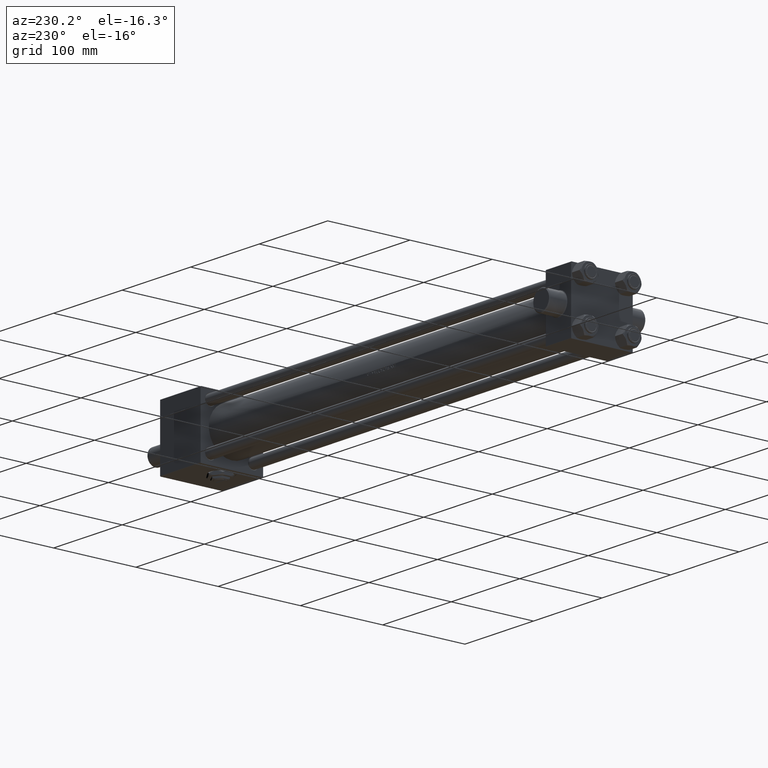
[diagram: clean part render]
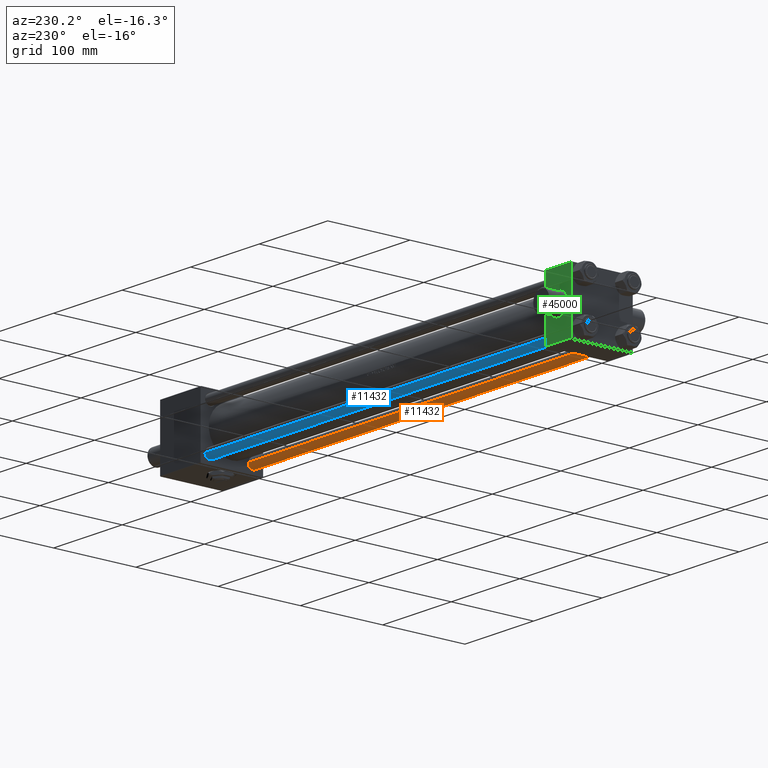
[diagram: same view with three faces highlighted in distinct colors, each labeled with its STEP entity id]
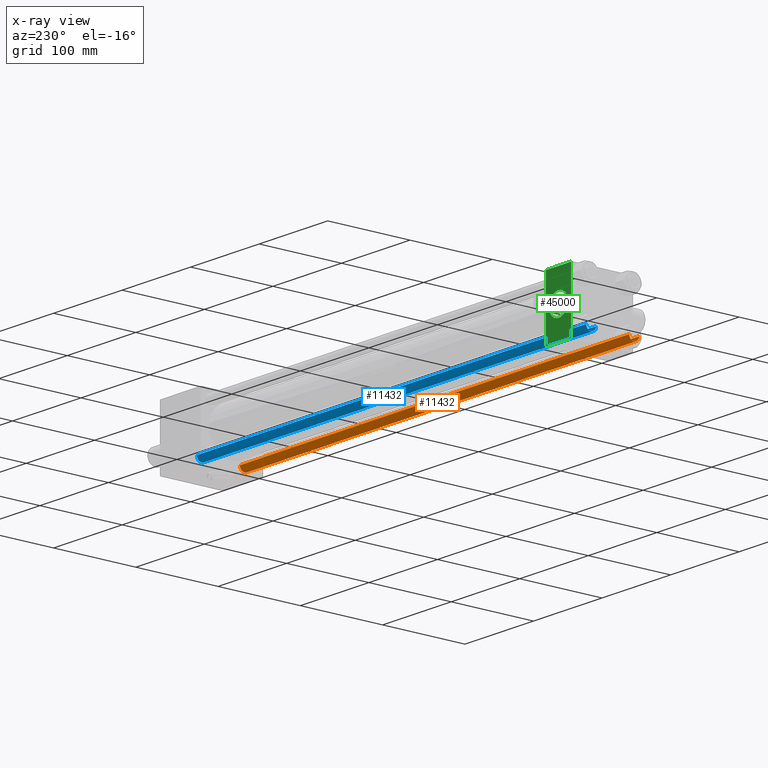
[diagram: x-ray of the same camera — body ghosted, the three highlighted faces saturated]
A machine part, auxiliary view with three faces highlighted in distinct colors.
The next image is the same camera in x-ray (body ghosted, the three faces saturated) — at least one of them is partly hidden behind the body in this view.
Their STEP definitions:

[orange] entity #11432 — the highlighted cylindrical surface (edge-blend (fillet) strip) has radius 6 mm, axis along (-1, 0, 0).
#1288 = DIRECTION ( 'NONE',  ( 1.000000000000000000, 0.000000000000000000, 0.000000000000000000 ) ) ;
#2099 = EDGE_LOOP ( 'NONE', ( #42581, #36193, #37785, #2671 ) ) ;
#2671 = ORIENTED_EDGE ( 'NONE', *, *, #28046, .T. ) ;
#4031 = CARTESIAN_POINT ( 'NONE',  ( 0.000000000000000000, 0.000000000000000000, 0.5000000000000559552 ) ) ;
#4516 = DIRECTION ( 'NONE',  ( -0.000000000000000000, -0.000000000000000000, 1.000000000000000000 ) ) ;
#4569 = DIRECTION ( 'NONE',  ( -0.000000000000000000, -0.000000000000000000, -1.000000000000000000 ) ) ;
#4586 = AXIS2_PLACEMENT_3D ( 'NONE', #4031, #4516, #1288 ) ;
#6389 = VERTEX_POINT ( 'NONE', #21955 ) ;
#7264 = LINE ( 'NONE', #33995, #38948 ) ;
#9618 = AXIS2_PLACEMENT_3D ( 'NONE', #43737, #10044, #36284 ) ;
#9925 = CARTESIAN_POINT ( 'NONE',  ( -6.000000000000000888, 0.000000000000000000, 0.5000000000000559552 ) ) ;
#10044 = DIRECTION ( 'NONE',  ( 0.000000000000000000, 0.000000000000000000, -1.000000000000000000 ) ) ;
#11358 = CARTESIAN_POINT ( 'NONE',  ( 0.000000000000000000, 0.000000000000000000, 569.0000000000000000 ) ) ;
#11432 = ADVANCED_FACE ( 'NONE', ( #23499 ), #31154, .T. ) ;
#11701 = DIRECTION ( 'NONE',  ( -0.000000000000000000, -0.000000000000000000, -1.000000000000000000 ) ) ;
#21955 = CARTESIAN_POINT ( 'NONE',  ( -6.000000000000000888, 0.000000000000000000, 568.5000000000001137 ) ) ;
#22261 = VECTOR ( 'NONE', #4569, 1000.000000000000000 ) ;
#23499 = FACE_OUTER_BOUND ( 'NONE', #2099, .T. ) ;
#24649 = CIRCLE ( 'NONE', #9618, 6.000000000000000888 ) ;
#26466 = DIRECTION ( 'NONE',  ( -0.000000000000000000, -0.000000000000000000, -1.000000000000000000 ) ) ;
#26877 = CARTESIAN_POINT ( 'NONE',  ( 6.000000000000000888, 7.347880794884120722E-16, 569.0000000000000000 ) ) ;
#28046 = EDGE_CURVE ( 'NONE', #32901, #30251, #40163, .T. ) ;
#30251 = VERTEX_POINT ( 'NONE', #48231 ) ;
#31154 = CYLINDRICAL_SURFACE ( 'NONE', #38606, 6.000000000000000888 ) ;
#32901 = VERTEX_POINT ( 'NONE', #9925 ) ;
#33995 = CARTESIAN_POINT ( 'NONE',  ( -6.000000000000000888, 0.000000000000000000, 569.0000000000000000 ) ) ;
#36193 = ORIENTED_EDGE ( 'NONE', *, *, #41231, .T. ) ;
#36284 = DIRECTION ( 'NONE',  ( 1.000000000000000000, 0.000000000000000000, 0.000000000000000000 ) ) ;
#36463 = EDGE_CURVE ( 'NONE', #37495, #30251, #42220, .T. ) ;
#37495 = VERTEX_POINT ( 'NONE', #43402 ) ;
#37785 = ORIENTED_EDGE ( 'NONE', *, *, #43302, .T. ) ;
#38606 = AXIS2_PLACEMENT_3D ( 'NONE', #11358, #26466, #41562 ) ;
#38948 = VECTOR ( 'NONE', #11701, 1000.000000000000000 ) ;
#40163 = CIRCLE ( 'NONE', #4586, 6.000000000000000888 ) ;
#41231 = EDGE_CURVE ( 'NONE', #37495, #6389, #24649, .T. ) ;
#41562 = DIRECTION ( 'NONE',  ( -1.000000000000000000, 0.000000000000000000, 0.000000000000000000 ) ) ;
#42220 = LINE ( 'NONE', #26877, #22261 ) ;
#42581 = ORIENTED_EDGE ( 'NONE', *, *, #36463, .F. ) ;
#43302 = EDGE_CURVE ( 'NONE', #6389, #32901, #7264, .T. ) ;
#43402 = CARTESIAN_POINT ( 'NONE',  ( 6.000000000000000888, 7.347880794884120722E-16, 568.5000000000001137 ) ) ;
#43737 = CARTESIAN_POINT ( 'NONE',  ( 0.000000000000000000, 0.000000000000000000, 568.5000000000001137 ) ) ;
#48231 = CARTESIAN_POINT ( 'NONE',  ( 6.000000000000000888, 7.347880794884120722E-16, 0.5000000000000559552 ) ) ;

[blue] entity #11432 — the highlighted cylindrical surface (edge-blend (fillet) strip) has radius 6 mm, axis along (1, 0, 0).
#1288 = DIRECTION ( 'NONE',  ( 1.000000000000000000, 0.000000000000000000, 0.000000000000000000 ) ) ;
#2099 = EDGE_LOOP ( 'NONE', ( #42581, #36193, #37785, #2671 ) ) ;
#2671 = ORIENTED_EDGE ( 'NONE', *, *, #28046, .T. ) ;
#4031 = CARTESIAN_POINT ( 'NONE',  ( 0.000000000000000000, 0.000000000000000000, 0.5000000000000559552 ) ) ;
#4516 = DIRECTION ( 'NONE',  ( -0.000000000000000000, -0.000000000000000000, 1.000000000000000000 ) ) ;
#4569 = DIRECTION ( 'NONE',  ( -0.000000000000000000, -0.000000000000000000, -1.000000000000000000 ) ) ;
#4586 = AXIS2_PLACEMENT_3D ( 'NONE', #4031, #4516, #1288 ) ;
#6389 = VERTEX_POINT ( 'NONE', #21955 ) ;
#7264 = LINE ( 'NONE', #33995, #38948 ) ;
#9618 = AXIS2_PLACEMENT_3D ( 'NONE', #43737, #10044, #36284 ) ;
#9925 = CARTESIAN_POINT ( 'NONE',  ( -6.000000000000000888, 0.000000000000000000, 0.5000000000000559552 ) ) ;
#10044 = DIRECTION ( 'NONE',  ( 0.000000000000000000, 0.000000000000000000, -1.000000000000000000 ) ) ;
#11358 = CARTESIAN_POINT ( 'NONE',  ( 0.000000000000000000, 0.000000000000000000, 569.0000000000000000 ) ) ;
#11432 = ADVANCED_FACE ( 'NONE', ( #23499 ), #31154, .T. ) ;
#11701 = DIRECTION ( 'NONE',  ( -0.000000000000000000, -0.000000000000000000, -1.000000000000000000 ) ) ;
#21955 = CARTESIAN_POINT ( 'NONE',  ( -6.000000000000000888, 0.000000000000000000, 568.5000000000001137 ) ) ;
#22261 = VECTOR ( 'NONE', #4569, 1000.000000000000000 ) ;
#23499 = FACE_OUTER_BOUND ( 'NONE', #2099, .T. ) ;
#24649 = CIRCLE ( 'NONE', #9618, 6.000000000000000888 ) ;
#26466 = DIRECTION ( 'NONE',  ( -0.000000000000000000, -0.000000000000000000, -1.000000000000000000 ) ) ;
#26877 = CARTESIAN_POINT ( 'NONE',  ( 6.000000000000000888, 7.347880794884120722E-16, 569.0000000000000000 ) ) ;
#28046 = EDGE_CURVE ( 'NONE', #32901, #30251, #40163, .T. ) ;
#30251 = VERTEX_POINT ( 'NONE', #48231 ) ;
#31154 = CYLINDRICAL_SURFACE ( 'NONE', #38606, 6.000000000000000888 ) ;
#32901 = VERTEX_POINT ( 'NONE', #9925 ) ;
#33995 = CARTESIAN_POINT ( 'NONE',  ( -6.000000000000000888, 0.000000000000000000, 569.0000000000000000 ) ) ;
#36193 = ORIENTED_EDGE ( 'NONE', *, *, #41231, .T. ) ;
#36284 = DIRECTION ( 'NONE',  ( 1.000000000000000000, 0.000000000000000000, 0.000000000000000000 ) ) ;
#36463 = EDGE_CURVE ( 'NONE', #37495, #30251, #42220, .T. ) ;
#37495 = VERTEX_POINT ( 'NONE', #43402 ) ;
#37785 = ORIENTED_EDGE ( 'NONE', *, *, #43302, .T. ) ;
#38606 = AXIS2_PLACEMENT_3D ( 'NONE', #11358, #26466, #41562 ) ;
#38948 = VECTOR ( 'NONE', #11701, 1000.000000000000000 ) ;
#40163 = CIRCLE ( 'NONE', #4586, 6.000000000000000888 ) ;
#41231 = EDGE_CURVE ( 'NONE', #37495, #6389, #24649, .T. ) ;
#41562 = DIRECTION ( 'NONE',  ( -1.000000000000000000, 0.000000000000000000, 0.000000000000000000 ) ) ;
#42220 = LINE ( 'NONE', #26877, #22261 ) ;
#42581 = ORIENTED_EDGE ( 'NONE', *, *, #36463, .F. ) ;
#43302 = EDGE_CURVE ( 'NONE', #6389, #32901, #7264, .T. ) ;
#43402 = CARTESIAN_POINT ( 'NONE',  ( 6.000000000000000888, 7.347880794884120722E-16, 568.5000000000001137 ) ) ;
#43737 = CARTESIAN_POINT ( 'NONE',  ( 0.000000000000000000, 0.000000000000000000, 568.5000000000001137 ) ) ;
#48231 = CARTESIAN_POINT ( 'NONE',  ( 6.000000000000000888, 7.347880794884120722E-16, 0.5000000000000559552 ) ) ;

[green] entity #45000 — the highlighted planar face has unit normal (0, 1, 0).
#688 = VERTEX_POINT ( 'NONE', #35640 ) ;
#2200 = CARTESIAN_POINT ( 'NONE',  ( 18.50000000000000000, 37.49999999999999289, 13.49999999999999822 ) ) ;
#2546 = LINE ( 'NONE', #17655, #17232 ) ;
#2973 = EDGE_CURVE ( 'NONE', #17798, #12843, #8095, .T. ) ;
#3506 = DIRECTION ( 'NONE',  ( -0.000000000000000000, 1.000000000000000000, 0.000000000000000000 ) ) ;
#4037 = VERTEX_POINT ( 'NONE', #2200 ) ;
#4311 = LINE ( 'NONE', #11268, #27828 ) ;
#6439 = DIRECTION ( 'NONE',  ( 0.000000000000000000, -1.000000000000000000, -0.000000000000000000 ) ) ;
#8095 = LINE ( 'NONE', #19252, #25807 ) ;
#8109 = VERTEX_POINT ( 'NONE', #45599 ) ;
#8155 = AXIS2_PLACEMENT_3D ( 'NONE', #26545, #3506, #26299 ) ;
#9436 = VECTOR ( 'NONE', #37779, 1000.000000000000000 ) ;
#10545 = EDGE_CURVE ( 'NONE', #46149, #17798, #2546, .T. ) ;
#11268 = CARTESIAN_POINT ( 'NONE',  ( 37.00000000000000000, 37.49999999999999289, -36.99999999999998579 ) ) ;
#11769 = AXIS2_PLACEMENT_3D ( 'NONE', #46470, #12534, #31590 ) ;
#12520 = CARTESIAN_POINT ( 'NONE',  ( 0.000000000000000000, 37.49999999999999289, 37.50000000000000000 ) ) ;
#12534 = DIRECTION ( 'NONE',  ( 0.000000000000000000, -1.000000000000000000, -0.000000000000000000 ) ) ;
#12843 = VERTEX_POINT ( 'NONE', #19058 ) ;
#15984 = CARTESIAN_POINT ( 'NONE',  ( 0.000000000000000000, 37.49999999999999289, 37.00000000000000000 ) ) ;
#17232 = VECTOR ( 'NONE', #32758, 1000.000000000000000 ) ;
#17655 = CARTESIAN_POINT ( 'NONE',  ( 37.00000000000000000, 37.49999999999999289, 37.00000000000000000 ) ) ;
#17798 = VERTEX_POINT ( 'NONE', #32188 ) ;
#18327 = EDGE_CURVE ( 'NONE', #46149, #8109, #46459, .T. ) ;
#18877 = CIRCLE ( 'NONE', #11769, 13.50000000000000178 ) ;
#19058 = CARTESIAN_POINT ( 'NONE',  ( 37.00000000000000000, 37.49999999999999289, -36.99999999999998579 ) ) ;
#19113 = PLANE ( 'NONE',  #8155 ) ;
#19252 = CARTESIAN_POINT ( 'NONE',  ( 37.00000000000000000, 37.49999999999999289, 37.50000000000000000 ) ) ;
#21564 = DIRECTION ( 'NONE',  ( 0.000000000000000000, 0.000000000000000000, 1.000000000000000000 ) ) ;
#22360 = FACE_BOUND ( 'NONE', #27716, .T. ) ;
#23160 = DIRECTION ( 'NONE',  ( -1.000000000000000000, 0.000000000000000000, 0.000000000000000000 ) ) ;
#25527 = CARTESIAN_POINT ( 'NONE',  ( 18.50000000000000000, 37.49999999999999289, -3.556183125752453755E-15 ) ) ;
#25807 = VECTOR ( 'NONE', #45757, 1000.000000000000000 ) ;
#26086 = EDGE_CURVE ( 'NONE', #4037, #688, #48811, .T. ) ;
#26299 = DIRECTION ( 'NONE',  ( 0.000000000000000000, -0.000000000000000000, 1.000000000000000000 ) ) ;
#26545 = CARTESIAN_POINT ( 'NONE',  ( 37.00000000000000000, 37.49999999999999289, 37.50000000000000000 ) ) ;
#27450 = AXIS2_PLACEMENT_3D ( 'NONE', #25527, #6439, #21564 ) ;
#27716 = EDGE_LOOP ( 'NONE', ( #36516, #43955 ) ) ;
#27828 = VECTOR ( 'NONE', #23160, 1000.000000000000000 ) ;
#29767 = FACE_OUTER_BOUND ( 'NONE', #44768, .T. ) ;
#30442 = EDGE_CURVE ( 'NONE', #688, #4037, #18877, .T. ) ;
#31590 = DIRECTION ( 'NONE',  ( 0.000000000000000000, 0.000000000000000000, 1.000000000000000000 ) ) ;
#32188 = CARTESIAN_POINT ( 'NONE',  ( 37.00000000000000000, 37.49999999999999289, 37.00000000000000000 ) ) ;
#32758 = DIRECTION ( 'NONE',  ( 1.000000000000000000, 0.000000000000000000, 0.000000000000000000 ) ) ;
#34649 = ORIENTED_EDGE ( 'NONE', *, *, #42274, .T. ) ;
#35640 = CARTESIAN_POINT ( 'NONE',  ( 18.50000000000000000, 37.49999999999999289, -13.50000000000000533 ) ) ;
#36516 = ORIENTED_EDGE ( 'NONE', *, *, #26086, .T. ) ;
#37779 = DIRECTION ( 'NONE',  ( 0.000000000000000000, 0.000000000000000000, -1.000000000000000000 ) ) ;
#42274 = EDGE_CURVE ( 'NONE', #12843, #8109, #4311, .T. ) ;
#42909 = ORIENTED_EDGE ( 'NONE', *, *, #18327, .F. ) ;
#43955 = ORIENTED_EDGE ( 'NONE', *, *, #30442, .T. ) ;
#44400 = ORIENTED_EDGE ( 'NONE', *, *, #10545, .T. ) ;
#44768 = EDGE_LOOP ( 'NONE', ( #46541, #34649, #42909, #44400 ) ) ;
#45000 = ADVANCED_FACE ( 'NONE', ( #22360, #29767 ), #19113, .T. ) ;
#45599 = CARTESIAN_POINT ( 'NONE',  ( 0.000000000000000000, 37.49999999999999289, -36.99999999999998579 ) ) ;
#45757 = DIRECTION ( 'NONE',  ( 0.000000000000000000, 0.000000000000000000, -1.000000000000000000 ) ) ;
#46149 = VERTEX_POINT ( 'NONE', #15984 ) ;
#46459 = LINE ( 'NONE', #12520, #9436 ) ;
#46470 = CARTESIAN_POINT ( 'NONE',  ( 18.50000000000000000, 37.49999999999999289, -3.556183125752453755E-15 ) ) ;
#46541 = ORIENTED_EDGE ( 'NONE', *, *, #2973, .T. ) ;
#48811 = CIRCLE ( 'NONE', #27450, 13.50000000000000178 ) ;